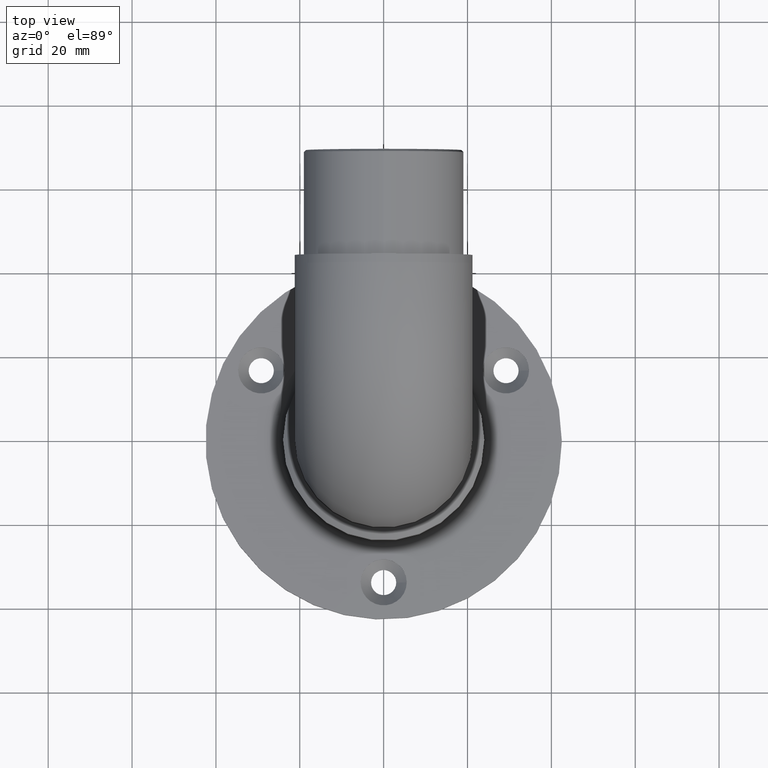
[diagram: clean part render]
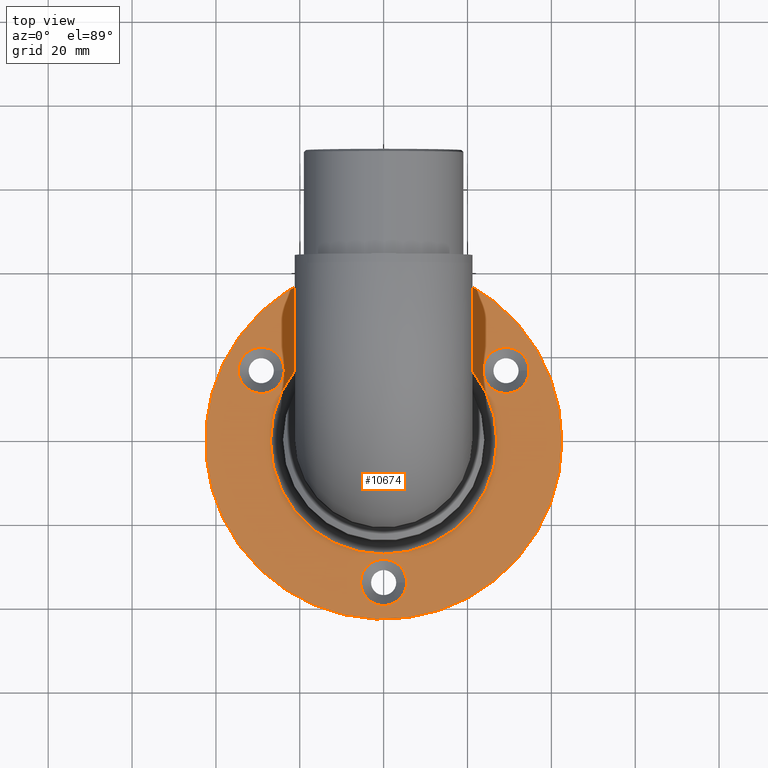
[diagram: same view with one face highlighted and labeled with its STEP entity id]
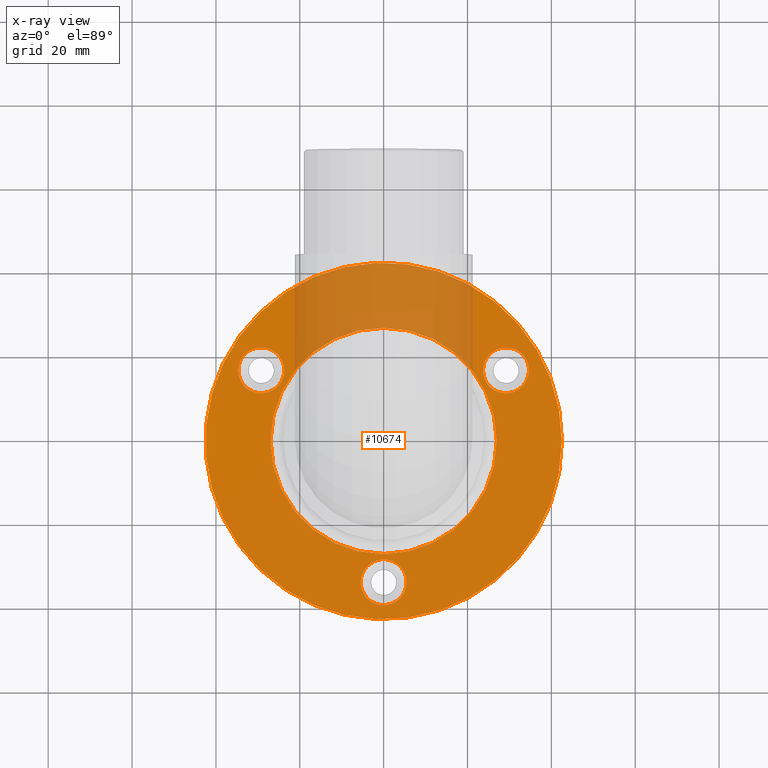
[diagram: x-ray of the same camera — body ghosted, the highlighted face saturated]
A machine part, top view. The second image highlights one B-rep face of the part: STEP entity #10674.
The next image is the same camera in x-ray: the body ghosted, the highlighted face saturated — about 23% of this face is hidden behind the body in this view.
In plain terms, the highlighted planar face has unit normal (0, 0, 1).
Its self-contained STEP definition (entity closure, byte-faithful):
#547 = EDGE_CURVE ( 'NONE', #10365, #10365, #1330, .T. ) ;
#749 = EDGE_LOOP ( 'NONE', ( #14861 ) ) ;
#1143 = EDGE_CURVE ( 'NONE', #9973, #9973, #1205, .T. ) ;
#1205 = CIRCLE ( 'NONE', #14876, 5.499999999999994671 ) ;
#1330 = CIRCLE ( 'NONE', #5172, 42.50000000000000711 ) ;
#1523 = CARTESIAN_POINT ( 'NONE',  ( 0.000000000000000000, 0.000000000000000000, 5.000000000000000000 ) ) ;
#2250 = DIRECTION ( 'NONE',  ( 0.000000000000000000, 0.000000000000000000, 1.000000000000000000 ) ) ;
#2751 = ORIENTED_EDGE ( 'NONE', *, *, #6215, .F. ) ;
#4072 = DIRECTION ( 'NONE',  ( -0.000000000000000000, -0.000000000000000000, 1.000000000000000000 ) ) ;
#4323 = VERTEX_POINT ( 'NONE', #5208 ) ;
#4514 = ORIENTED_EDGE ( 'NONE', *, *, #547, .T. ) ;
#4578 = CIRCLE ( 'NONE', #15050, 27.00000000000000355 ) ;
#4589 = EDGE_LOOP ( 'NONE', ( #8366 ) ) ;
#4696 = DIRECTION ( 'NONE',  ( 1.000000000000000000, 0.000000000000000000, -0.000000000000000000 ) ) ;
#5024 = DIRECTION ( 'NONE',  ( 1.000000000000000000, 0.000000000000000000, 0.000000000000000000 ) ) ;
#5172 = AXIS2_PLACEMENT_3D ( 'NONE', #1523, #7475, #5024 ) ;
#5208 = CARTESIAN_POINT ( 'NONE',  ( -23.68505610753574331, 16.84999999999972786, 5.000000000000001776 ) ) ;
#5273 = DIRECTION ( 'NONE',  ( -0.000000000000000000, -0.000000000000000000, 1.000000000000000000 ) ) ;
#5640 = CARTESIAN_POINT ( 'NONE',  ( -29.18505610753574331, 16.84999999999972786, 5.000000000000001776 ) ) ;
#5661 = AXIS2_PLACEMENT_3D ( 'NONE', #5640, #14057, #15290 ) ;
#5841 = CIRCLE ( 'NONE', #9411, 5.499999999999998224 ) ;
#6215 = EDGE_CURVE ( 'NONE', #4323, #4323, #12670, .T. ) ;
#6221 = FACE_OUTER_BOUND ( 'NONE', #11352, .T. ) ;
#6955 = DIRECTION ( 'NONE',  ( -0.000000000000000000, -0.000000000000000000, -1.000000000000000000 ) ) ;
#7175 = FACE_BOUND ( 'NONE', #7981, .T. ) ;
#7475 = DIRECTION ( 'NONE',  ( 0.000000000000000000, 0.000000000000000000, 1.000000000000000000 ) ) ;
#7498 = VERTEX_POINT ( 'NONE', #9949 ) ;
#7508 = CARTESIAN_POINT ( 'NONE',  ( 27.00000000000000355, 0.000000000000000000, 5.000000000000000000 ) ) ;
#7981 = EDGE_LOOP ( 'NONE', ( #2751 ) ) ;
#8102 = AXIS2_PLACEMENT_3D ( 'NONE', #15362, #2250, #4696 ) ;
#8366 = ORIENTED_EDGE ( 'NONE', *, *, #8793, .T. ) ;
#8793 = EDGE_CURVE ( 'NONE', #11487, #11487, #4578, .T. ) ;
#9411 = AXIS2_PLACEMENT_3D ( 'NONE', #14815, #5273, #13690 ) ;
#9873 = CARTESIAN_POINT ( 'NONE',  ( 29.18505610753550528, 16.85000000000014353, 5.000000000000001776 ) ) ;
#9949 = CARTESIAN_POINT ( 'NONE',  ( 5.500000000000002665, -33.70000000000000284, 5.000000000000001776 ) ) ;
#9973 = VERTEX_POINT ( 'NONE', #13508 ) ;
#10365 = VERTEX_POINT ( 'NONE', #12364 ) ;
#10514 = PLANE ( 'NONE',  #8102 ) ;
#10674 = ADVANCED_FACE ( 'NONE', ( #13965, #7175, #12445, #10753, #6221 ), #10514, .T. ) ;
#10753 = FACE_BOUND ( 'NONE', #13731, .T. ) ;
#11352 = EDGE_LOOP ( 'NONE', ( #4514 ) ) ;
#11487 = VERTEX_POINT ( 'NONE', #7508 ) ;
#11586 = EDGE_CURVE ( 'NONE', #7498, #7498, #5841, .T. ) ;
#11795 = CARTESIAN_POINT ( 'NONE',  ( 0.000000000000000000, 0.000000000000000000, 5.000000000000000000 ) ) ;
#12364 = CARTESIAN_POINT ( 'NONE',  ( 42.50000000000000711, 0.000000000000000000, 5.000000000000000000 ) ) ;
#12445 = FACE_BOUND ( 'NONE', #749, .T. ) ;
#12670 = CIRCLE ( 'NONE', #5661, 5.499999999999998224 ) ;
#13071 = ORIENTED_EDGE ( 'NONE', *, *, #11586, .F. ) ;
#13508 = CARTESIAN_POINT ( 'NONE',  ( 34.68505610753550172, 16.85000000000014353, 5.000000000000001776 ) ) ;
#13690 = DIRECTION ( 'NONE',  ( 1.000000000000000000, 0.000000000000000000, 0.000000000000000000 ) ) ;
#13731 = EDGE_LOOP ( 'NONE', ( #13071 ) ) ;
#13965 = FACE_BOUND ( 'NONE', #4589, .T. ) ;
#14057 = DIRECTION ( 'NONE',  ( -0.000000000000000000, -0.000000000000000000, 1.000000000000000000 ) ) ;
#14063 = DIRECTION ( 'NONE',  ( 1.000000000000000000, 0.000000000000000000, 0.000000000000000000 ) ) ;
#14815 = CARTESIAN_POINT ( 'NONE',  ( 4.127059713126582066E-15, -33.70000000000000284, 5.000000000000001776 ) ) ;
#14861 = ORIENTED_EDGE ( 'NONE', *, *, #1143, .F. ) ;
#14876 = AXIS2_PLACEMENT_3D ( 'NONE', #9873, #4072, #14938 ) ;
#14938 = DIRECTION ( 'NONE',  ( 1.000000000000000000, 0.000000000000000000, 0.000000000000000000 ) ) ;
#15050 = AXIS2_PLACEMENT_3D ( 'NONE', #11795, #6955, #14063 ) ;
#15290 = DIRECTION ( 'NONE',  ( 1.000000000000000000, 0.000000000000000000, 0.000000000000000000 ) ) ;
#15362 = CARTESIAN_POINT ( 'NONE',  ( 0.000000000000000000, 0.000000000000000000, 5.000000000000000000 ) ) ;